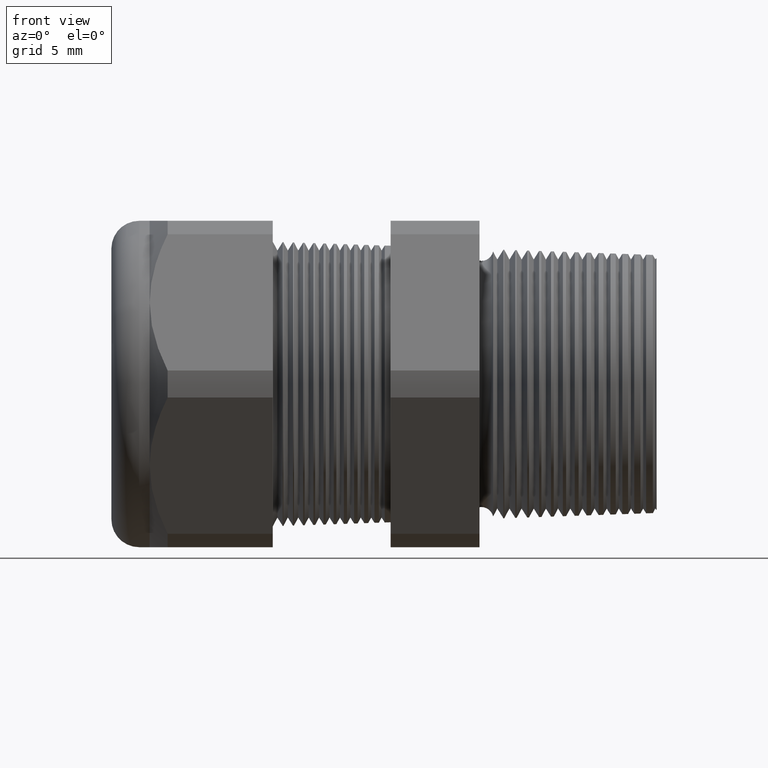
[diagram: clean part render]
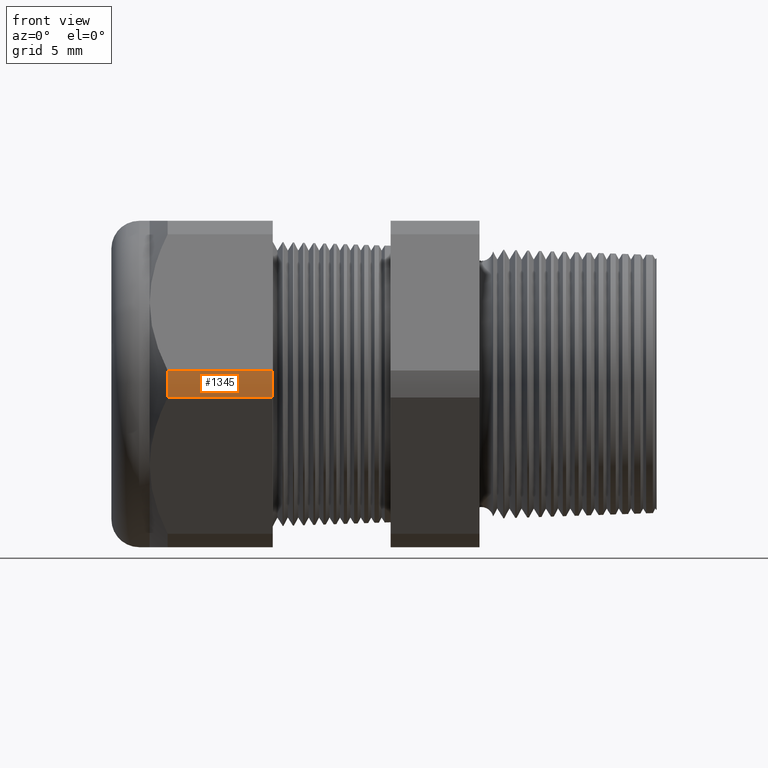
[diagram: same view with one face highlighted and labeled with its STEP entity id]
A machine part, front view. The second image highlights one B-rep face of the part: STEP entity #1345.
In plain terms, the highlighted cylindrical surface (partial cylindrical patch) has radius 13.2512 mm, axis along (-1, 0, 0).
Its self-contained STEP definition (entity closure, byte-faithful):
#1289 = EDGE_LOOP ( 'NONE', ( #1346, #1347, #1350, #1353 ) ) ;
#1345 = ADVANCED_FACE ( 'NONE', ( #4122 ), #4120, .T. ) ;
#1346 = ORIENTED_EDGE ( 'NONE', *, *, #1368, .T. ) ;
#1347 = ORIENTED_EDGE ( 'NONE', *, *, #1348, .T. ) ;
#1348 = EDGE_CURVE ( 'NONE', #1366, #1349, #4114, .T. ) ;
#1349 = VERTEX_POINT ( 'NONE', #4115 ) ;
#1350 = ORIENTED_EDGE ( 'NONE', *, *, #1351, .F. ) ;
#1351 = EDGE_CURVE ( 'NONE', #1352, #1349, #4171, .T. ) ;
#1352 = VERTEX_POINT ( 'NONE', #4167 ) ;
#1353 = ORIENTED_EDGE ( 'NONE', *, *, #1354, .F. ) ;
#1354 = EDGE_CURVE ( 'NONE', #1369, #1352, #4166, .T. ) ;
#1366 = VERTEX_POINT ( 'NONE', #4191 ) ;
#1368 = EDGE_CURVE ( 'NONE', #1369, #1366, #4183, .T. ) ;
#1369 = VERTEX_POINT ( 'NONE', #4179 ) ;
#4112 = DIRECTION ( 'NONE',  ( 1.000000000000000000, 0.0000000000000000000, 0.0000000000000000000 ) ) ;
#4113 = AXIS2_PLACEMENT_3D ( 'NONE', #4121, #4112, #4172 ) ;
#4114 = CIRCLE ( 'NONE', #4113, 0.5217000000000000500 ) ;
#4115 = CARTESIAN_POINT ( 'NONE',  ( -1.208063779527559300, -0.5202473208008777700, -0.03890520787129492900 ) ) ;
#4116 = DIRECTION ( 'NONE',  ( 0.0000000000000000000, 0.0000000000000000000, 1.000000000000000000 ) ) ;
#4117 = DIRECTION ( 'NONE',  ( -1.000000000000000000, 0.0000000000000000000, 0.0000000000000000000 ) ) ;
#4118 = CARTESIAN_POINT ( 'NONE',  ( 0.2000000000000000400, 0.0000000000000000000, 0.0000000000000000000 ) ) ;
#4119 = AXIS2_PLACEMENT_3D ( 'NONE', #4118, #4117, #4116 ) ;
#4120 = CYLINDRICAL_SURFACE ( 'NONE', #4119, 0.5217000000000000500 ) ;
#4121 = CARTESIAN_POINT ( 'NONE',  ( -1.208063779527559300, 0.0000000000000000000, 0.0000000000000000000 ) ) ;
#4122 = FACE_OUTER_BOUND ( 'NONE', #1289, .T. ) ;
#4162 = DIRECTION ( 'NONE',  ( 0.0000000000000000000, 0.0000000000000000000, -1.000000000000000000 ) ) ;
#4163 = DIRECTION ( 'NONE',  ( 1.000000000000000000, 0.0000000000000000000, 0.0000000000000000000 ) ) ;
#4164 = CARTESIAN_POINT ( 'NONE',  ( -0.9054330708661418900, 0.0000000000000000000, 0.0000000000000000000 ) ) ;
#4165 = AXIS2_PLACEMENT_3D ( 'NONE', #4164, #4163, #4162 ) ;
#4166 = CIRCLE ( 'NONE', #4165, 0.5217000000000000500 ) ;
#4167 = CARTESIAN_POINT ( 'NONE',  ( -0.9054330708661418900, -0.5202473208008777700, -0.03890520787129495000 ) ) ;
#4168 = DIRECTION ( 'NONE',  ( -1.000000000000000000, 0.0000000000000000000, 0.0000000000000000000 ) ) ;
#4169 = VECTOR ( 'NONE', #4168, 39.37007874015748100 ) ;
#4170 = CARTESIAN_POINT ( 'NONE',  ( 0.2000000000000000400, -0.5202473208008777700, -0.03890520787129495000 ) ) ;
#4171 = LINE ( 'NONE', #4170, #4169 ) ;
#4172 = DIRECTION ( 'NONE',  ( 0.0000000000000000000, 0.0000000000000000000, -1.000000000000000000 ) ) ;
#4179 = CARTESIAN_POINT ( 'NONE',  ( -0.9054330708661418900, -0.5202473208008777700, 0.03890520787129464500 ) ) ;
#4180 = DIRECTION ( 'NONE',  ( -1.000000000000000000, 0.0000000000000000000, 0.0000000000000000000 ) ) ;
#4181 = VECTOR ( 'NONE', #4180, 39.37007874015748100 ) ;
#4182 = CARTESIAN_POINT ( 'NONE',  ( 0.2000000000000000400, -0.5202473208008777700, 0.03890520787129464500 ) ) ;
#4183 = LINE ( 'NONE', #4182, #4181 ) ;
#4191 = CARTESIAN_POINT ( 'NONE',  ( -1.208063779527559300, -0.5202473208008777700, 0.03890520787129464500 ) ) ;